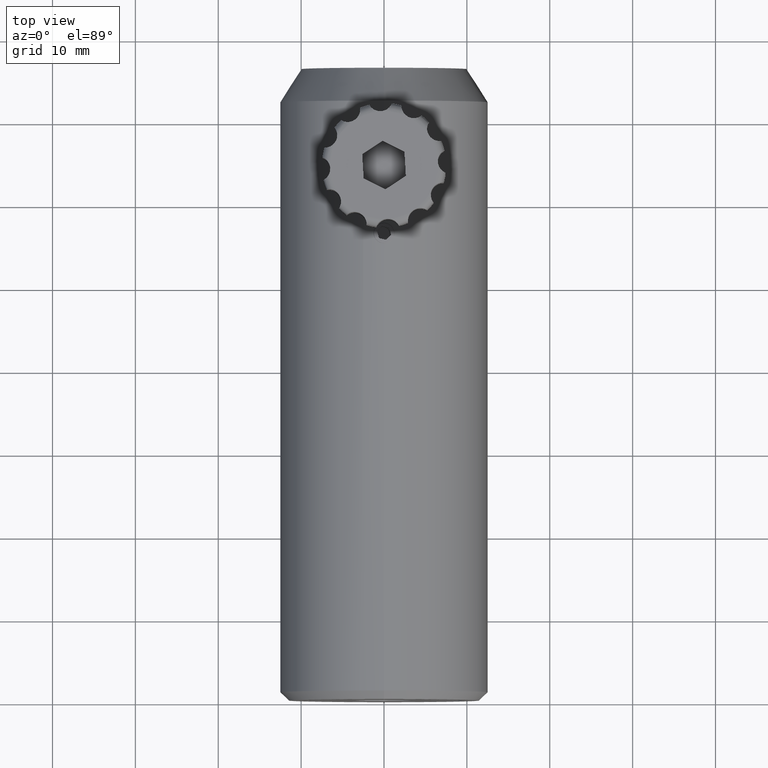
[diagram: clean part render]
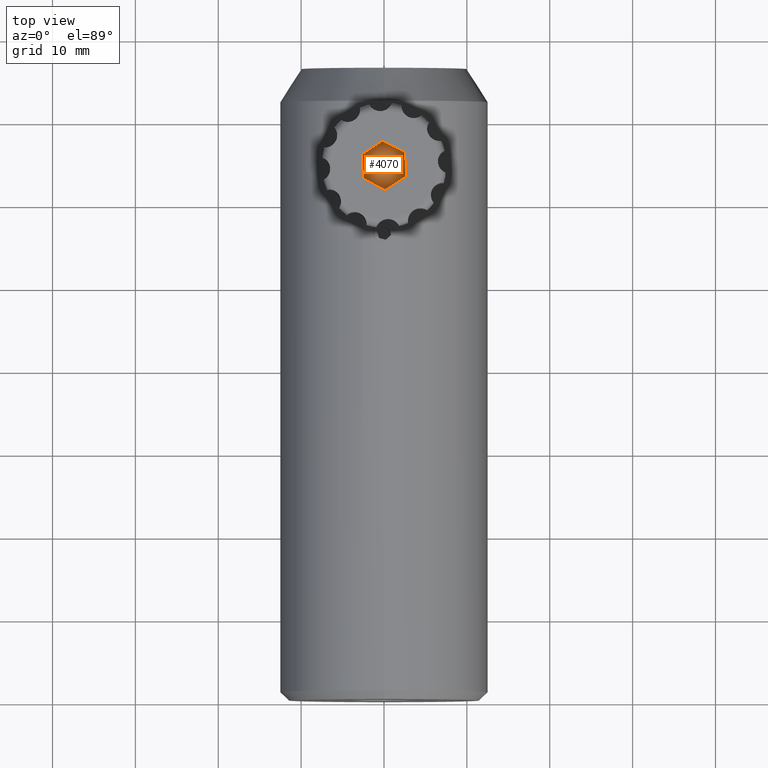
[diagram: same view with one face highlighted and labeled with its STEP entity id]
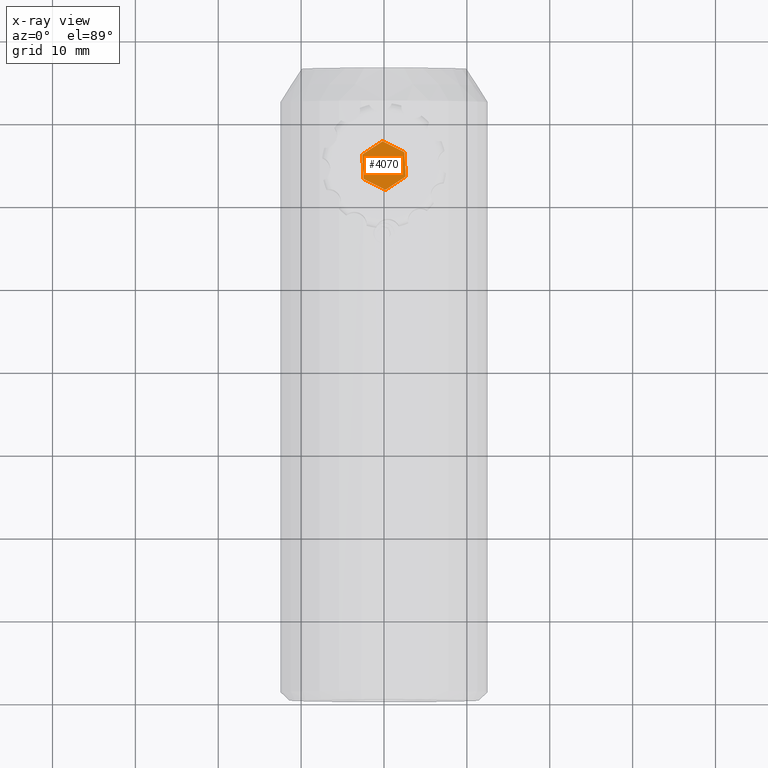
[diagram: x-ray of the same camera — body ghosted, the highlighted face saturated]
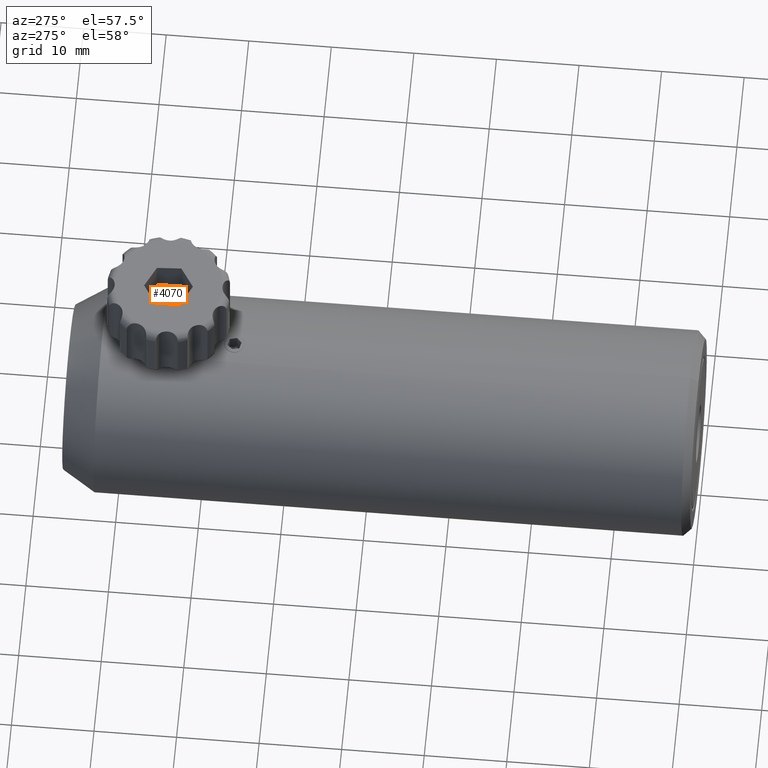
[diagram: same view with one face highlighted and labeled with its STEP entity id]
A machine part, top view. The second image highlights one B-rep face of the part: STEP entity #4070.
The next image is the same camera in x-ray: the body ghosted, the highlighted face saturated — about 0% of this face is hidden behind the body in this view.
A second angle (auxiliary view) of the same face is appended — the face is thin or edge-on in the first view.
In plain terms, the highlighted planar face has unit normal (0, -0, 1).
Its self-contained STEP definition (entity closure, byte-faithful):
#103 = EDGE_CURVE ( 'NONE', #2859, #926, #5290, .T. ) ;
#219 = DIRECTION ( 'NONE',  ( -0.8933722484354402700, 0.4493172884782042900, 7.114859578328035400E-016 ) ) ;
#317 = LINE ( 'NONE', #1765, #2476 ) ;
#395 = VERTEX_POINT ( 'NONE', #1568 ) ;
#477 = EDGE_CURVE ( 'NONE', #1038, #2743, #1404, .T. ) ;
#925 = EDGE_CURVE ( 'NONE', #395, #3666, #317, .T. ) ;
#926 = VERTEX_POINT ( 'NONE', #4223 ) ;
#1017 = CARTESIAN_POINT ( 'NONE',  ( 2.461020291327332500, 56.08833058799399400, 20.54999999999999400 ) ) ;
#1038 = VERTEX_POINT ( 'NONE', #1392 ) ;
#1238 = EDGE_LOOP ( 'NONE', ( #1932, #4032, #3282, #3588, #4338, #2424 ) ) ;
#1285 = DIRECTION ( 'NONE',  ( 0.8933722484354402700, -0.4493172884782042900, -7.114859578328035400E-016 ) ) ;
#1340 = CARTESIAN_POINT ( 'NONE',  ( 2.461020291327332500, 56.08833058799399400, 20.54999999999999400 ) ) ;
#1392 = CARTESIAN_POINT ( 'NONE',  ( 0.1695021200884895800, 51.53213212097324500, 20.54999999999999700 ) ) ;
#1404 = LINE ( 'NONE', #2861, #2230 ) ;
#1498 = CARTESIAN_POINT ( 'NONE',  ( 2.630522411415811200, 53.14872703797478700, 20.54999999999999400 ) ) ;
#1567 = PLANE ( 'NONE',  #1706 ) ;
#1568 = CARTESIAN_POINT ( 'NONE',  ( -2.630522411415773500, 55.79474430401012300, 20.54999999999999700 ) ) ;
#1605 = DIRECTION ( 'NONE',  ( 0.8358063103993861300, 0.5490244179420119600, -5.215461661741881600E-016 ) ) ;
#1691 = CARTESIAN_POINT ( 'NONE',  ( 2.630522411415811200, 53.14872703797478700, 20.54999999999999400 ) ) ;
#1706 = AXIS2_PLACEMENT_3D ( 'NONE', #5238, #2289, #3866 ) ;
#1765 = CARTESIAN_POINT ( 'NONE',  ( -2.630522411415773500, 55.79474430401012300, 20.54999999999999700 ) ) ;
#1850 = VECTOR ( 'NONE', #219, 1000.000000000000200 ) ;
#1894 = LINE ( 'NONE', #3732, #3345 ) ;
#1932 = ORIENTED_EDGE ( 'NONE', *, *, #4001, .T. ) ;
#2230 = VECTOR ( 'NONE', #1605, 1000.000000000000000 ) ;
#2274 = LINE ( 'NONE', #4721, #3223 ) ;
#2289 = DIRECTION ( 'NONE',  ( 7.216449660063532300E-016, -1.486441178477631500E-016, 1.000000000000000000 ) ) ;
#2333 = CARTESIAN_POINT ( 'NONE',  ( -2.461020291327298300, 52.85514075399091600, 20.54999999999999700 ) ) ;
#2424 = ORIENTED_EDGE ( 'NONE', *, *, #103, .T. ) ;
#2476 = VECTOR ( 'NONE', #5043, 1000.000000000000100 ) ;
#2673 = DIRECTION ( 'NONE',  ( -0.8358063103993861300, -0.5490244179420119600, 5.215461661741881600E-016 ) ) ;
#2743 = VERTEX_POINT ( 'NONE', #1691 ) ;
#2859 = VERTEX_POINT ( 'NONE', #1017 ) ;
#2861 = CARTESIAN_POINT ( 'NONE',  ( 0.1695021200884895800, 51.53213212097324500, 20.54999999999999700 ) ) ;
#3050 = DIRECTION ( 'NONE',  ( -0.05756593803605415000, 0.9983417064202161400, 1.899397916586153000E-016 ) ) ;
#3223 = VECTOR ( 'NONE', #2673, 1000.000000000000000 ) ;
#3282 = ORIENTED_EDGE ( 'NONE', *, *, #3933, .T. ) ;
#3345 = VECTOR ( 'NONE', #1285, 1000.000000000000200 ) ;
#3460 = LINE ( 'NONE', #1498, #5205 ) ;
#3577 = EDGE_CURVE ( 'NONE', #2743, #2859, #3460, .T. ) ;
#3588 = ORIENTED_EDGE ( 'NONE', *, *, #477, .T. ) ;
#3666 = VERTEX_POINT ( 'NONE', #2333 ) ;
#3732 = CARTESIAN_POINT ( 'NONE',  ( -2.461020291327298300, 52.85514075399091600, 20.54999999999999700 ) ) ;
#3866 = DIRECTION ( 'NONE',  ( 0.4493172884782042900, 0.8933722484354403900, -1.914530295915618000E-016 ) ) ;
#3933 = EDGE_CURVE ( 'NONE', #3666, #1038, #1894, .T. ) ;
#4001 = EDGE_CURVE ( 'NONE', #926, #395, #2274, .T. ) ;
#4032 = ORIENTED_EDGE ( 'NONE', *, *, #925, .T. ) ;
#4070 = ADVANCED_FACE ( 'NONE', ( #4192 ), #1567, .T. ) ;
#4192 = FACE_OUTER_BOUND ( 'NONE', #1238, .T. ) ;
#4223 = CARTESIAN_POINT ( 'NONE',  ( -0.1695021200884494800, 57.41133922101167300, 20.54999999999999700 ) ) ;
#4338 = ORIENTED_EDGE ( 'NONE', *, *, #3577, .T. ) ;
#4721 = CARTESIAN_POINT ( 'NONE',  ( -0.1695021200884494800, 57.41133922101167300, 20.54999999999999700 ) ) ;
#5043 = DIRECTION ( 'NONE',  ( 0.05756593803605415000, -0.9983417064202161400, -1.899397916586153000E-016 ) ) ;
#5205 = VECTOR ( 'NONE', #3050, 1000.000000000000100 ) ;
#5238 = CARTESIAN_POINT ( 'NONE',  ( -5.091542702743092600, 54.17814938700858100, 20.55000000000000100 ) ) ;
#5290 = LINE ( 'NONE', #1340, #1850 ) ;